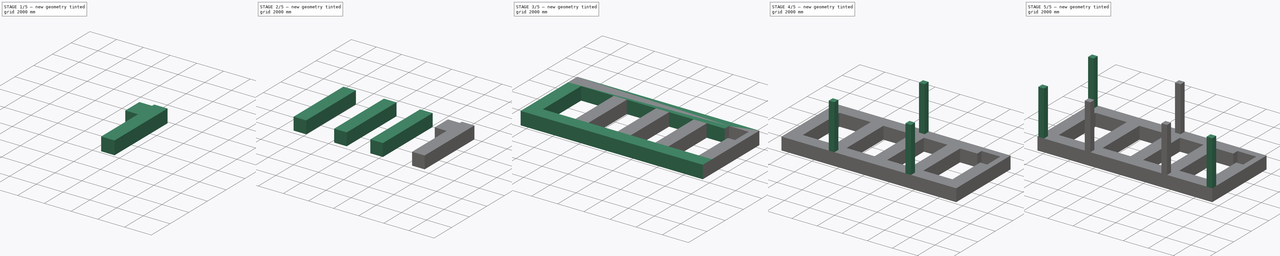
[diagram: build sequence overview — one tinted view per stage of 5, left to right]
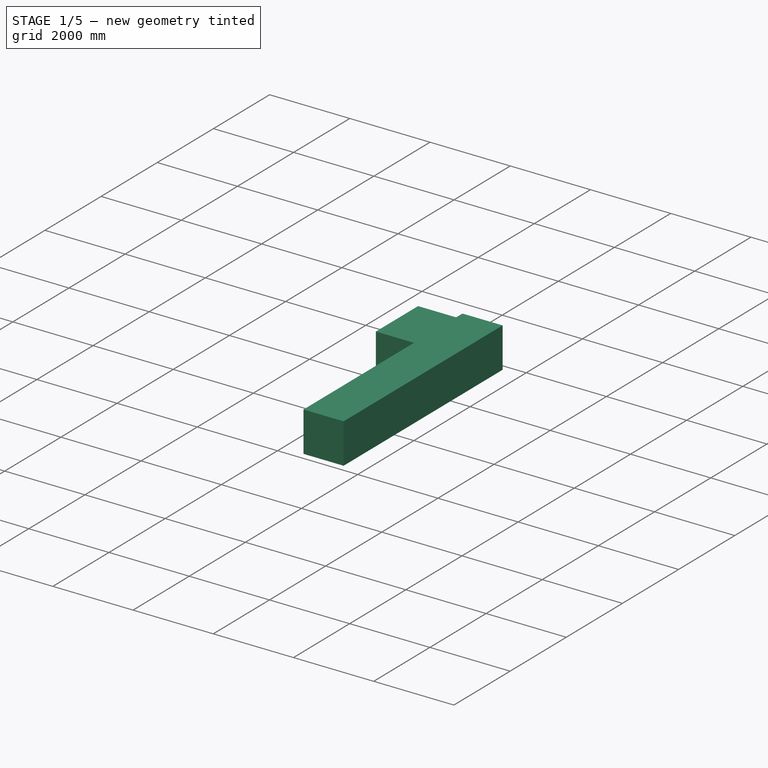
[diagram: stage 1 of 5 — iso view after this stage's code; geometry added in this stage tinted green]
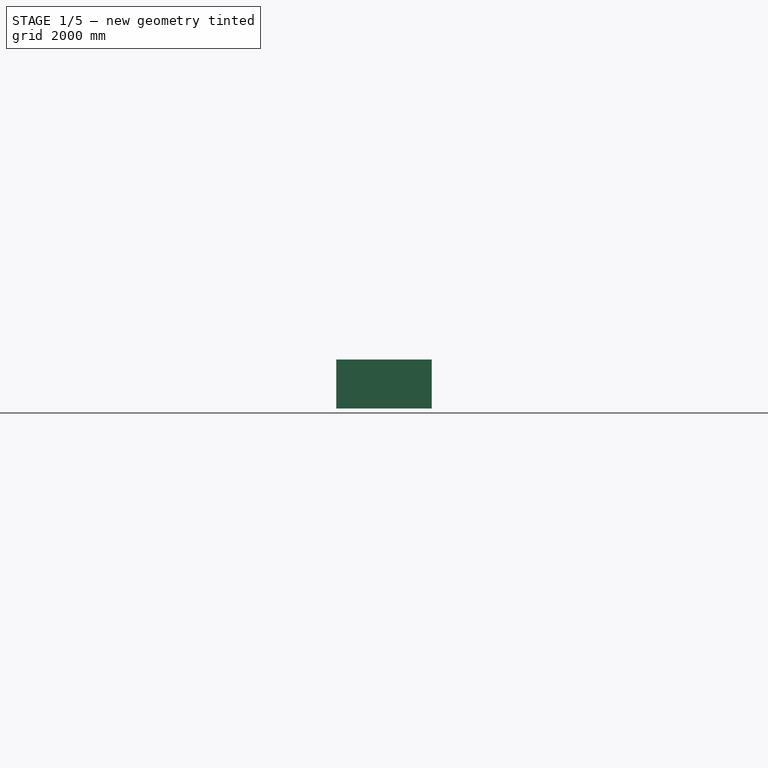
[diagram: stage 1 of 5 — front view after this stage's code; geometry added in this stage tinted green]
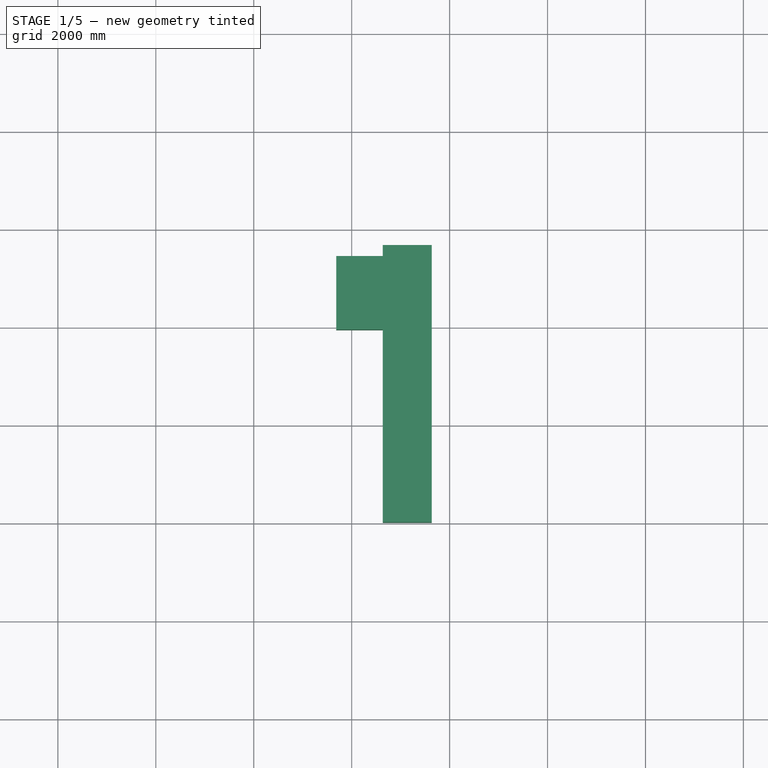
[diagram: stage 1 of 5 — top view after this stage's code; geometry added in this stage tinted green]
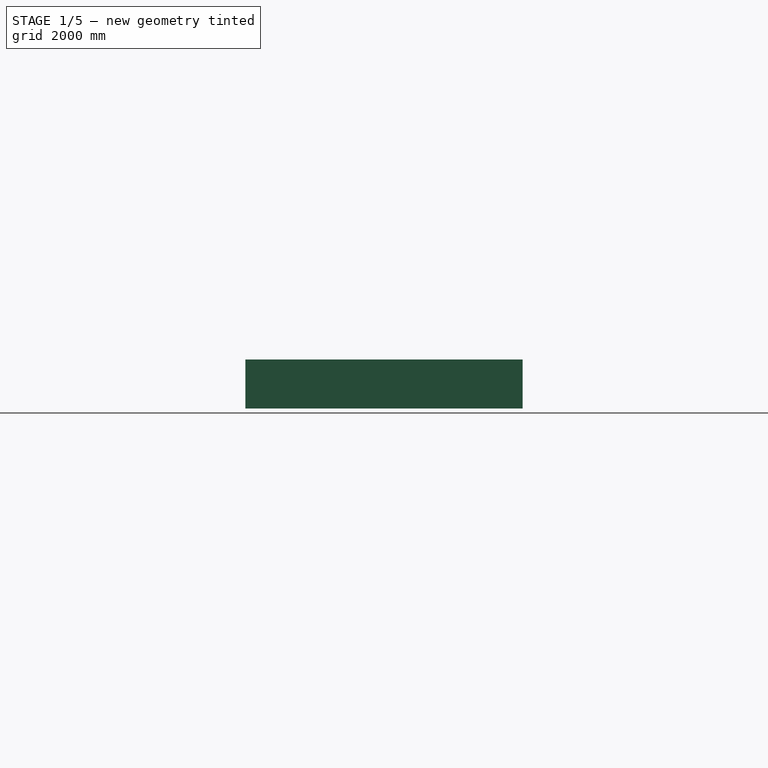
[diagram: stage 1 of 5 — right view after this stage's code; geometry added in this stage tinted green]
FCSTD DOCUMENT  (FreeCAD 0.19R24291 (Git))
Label: khalaji
License: All rights reserved
LicenseURL: http://en.wikipedia.org/wiki/All_rights_reserved
objects: Part::FeaturePython×30, Part::Part2DObjectPython×22, App::FeaturePython×15, App::DocumentObjectGroup×5, Sketcher::SketchObject×1
note: 141 computed .brp shape members not serialized (recipe doc carries the construction recipe); baked Part::Feature solids carry a one-line shape summary decoded from their .brp

FEATURE [Part::Part2DObjectPython] Line001  label="C15_Story1_CenterLine"  # Draft 2D object (typed FeaturePython)
  Area = 0
  ChamferSize = 0
  Closed = false
  End = (13410,5680,3600)
  FilletRadius = 0
  Length = 3600
  MakeFace = true
  Points = (2) [(13410,5680,0),(13410,5680,3600)]
  Start = (13410,5680,0)
  Subdivisions = 0
FEATURE [Part::FeaturePython] Structure001  label="C15_Story1"  # Arch/BIM 24 (typed FeaturePython)
  AttacherType = Attacher::AttachEngine3D
  AttachmentOffset = pos=(0,0,0) rot=(0,0,1;1.5708rad)
  Base = -> C4518Z
  FaceMaker = 0
  Height = 3600
  HorizontalArea = 202500
  IfcData = attributes={"GlobalId": {"name": "GlobalId", "type": "IfcGloballyUniqueId", "is_enum": false, "enum_values": []}, "Description": {"... (+438 chars omitted),+1 more (map truncated)
  IfcType = 24
  Length = 0
  MapMode = 7
  MoveBase = false
  MoveWithHost = false
  Nodes = (2) [(13410,5680,0),(13410,5680,3600)]
  NodesOffset = 0
  Normal = (0,0,0)
  PerimeterLength = 1800
  Placement = pos=(13410,5680,0) rot=(0,0,1;1.5708rad)
  PredefinedType = 0
  Support = -> [Line001]
  VerticalArea = 6.48e+06
  Width = 160
  combos_load = KH_11_Max=815.3684, 18066.92, -23855.31,KH_21_Max=799.7939, 18820.76, -25111.46,KH_22_Max=790.1386, 18723.22, -24869.01,+76 more (map truncated)
FEATURE [Part::Part2DObjectPython] Line011  # Draft 2D object (typed FeaturePython)
  Area = 0
  ChamferSize = 0
  Closed = false
  End = (13410,5680,0)
  FilletRadius = 0
  Length = 5660
  MakeFace = false
  Points = (2) [(13410,20,0),(13410,5680,0)]
  Start = (13410,20,0)
  Subdivisions = 0
FEATURE [Part::FeaturePython] BaseFoundation006  # Arch/BIM 77 (typed FeaturePython)
  Base = -> Line011
  HorizontalArea = 0
  IfcData = attributes={"GlobalId": {"name": "GlobalId", "type": "IfcGloballyUniqueId", "is_enum": false, "enum_values": []}, "Description": {"... (+511 chars omitted),+1 more (map truncated)
  IfcType = 77
  MoveBase = false
  MoveWithHost = false
  PerimeterLength = 0
  PredefinedType = 0
  VerticalArea = 0
  align = 2
  design_type = 0
  fc = 25000
  final_wire_first_point = (0,0,0)
  final_wire_last_point = (0,0,0)
  height = 1000
  ks = 2
  layer = 1
  left_width = 775
  right_width = 225
  width = 1000
FEATURE [Sketcher::SketchObject] sketch
  ExternalGeometry = -> [Structure001]
  FullyConstrained = true
  sketch-geometry (4):
    g0: LineSegment StartX=11685 StartY=3955 StartZ=0 EndX=11685 EndY=5455 EndZ=0
    g1: LineSegment StartX=11685 StartY=5455 StartZ=0 EndX=13185 EndY=5455 EndZ=0
    g2: LineSegment StartX=13185 StartY=5455 StartZ=0 EndX=13185 EndY=3955 EndZ=0
    g3: LineSegment StartX=13185 StartY=3955 StartZ=0 EndX=11685 EndY=3955 EndZ=0
  constraints (11):
    c: Coincident(g0,g1)
    c: Coincident(g1,g2)
    c: Coincident(g2,g3)
    c: Coincident(g3,g0)
    c: DistanceX(g1,g1) = 1500
    c: DistanceY(g2,g2) = 1500
    c: Horizontal(g1)
    c: Horizontal(g3)
    c: Vertical(g0)
    c: Vertical(g2)
    c: Coincident(g1,g-3)
FEATURE [Part::FeaturePython] Opening  # Arch/BIM 93 (typed FeaturePython)
  Base = -> sketch
  HorizontalArea = 0
  IfcData = attributes={"GlobalId": {"name": "GlobalId", "type": "IfcGloballyUniqueId", "is_enum": false, "enum_values": []}, "Description": {"... (+446 chars omitted),+1 more (map truncated)
  IfcType = 93
  MoveBase = false
  MoveWithHost = false
  PerimeterLength = 0
  PredefinedType = 0
  VerticalArea = 0
  height = 1000
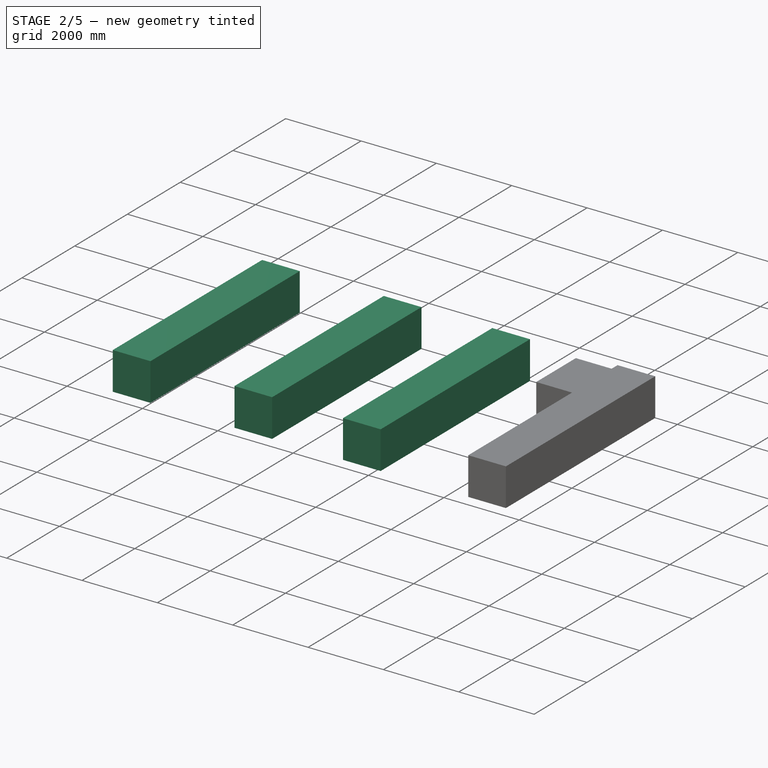
[diagram: stage 2 of 5 — iso view after this stage's code; geometry added in this stage tinted green]
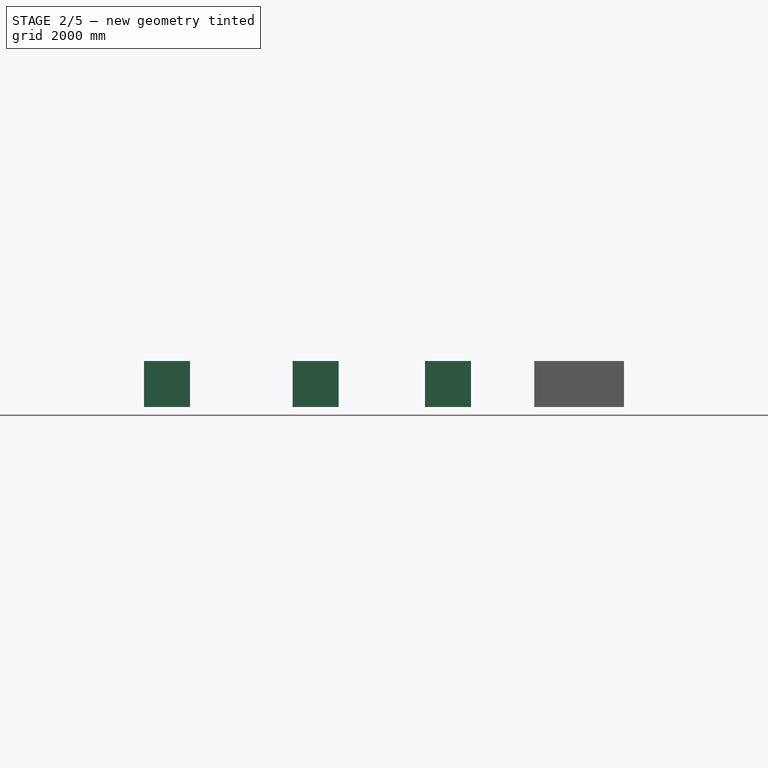
[diagram: stage 2 of 5 — front view after this stage's code; geometry added in this stage tinted green]
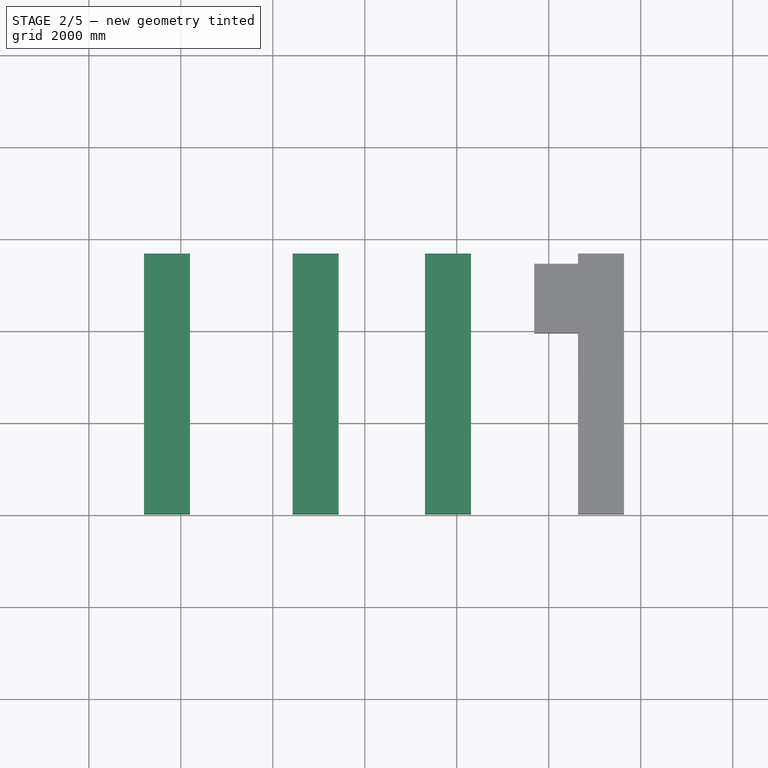
[diagram: stage 2 of 5 — top view after this stage's code; geometry added in this stage tinted green]
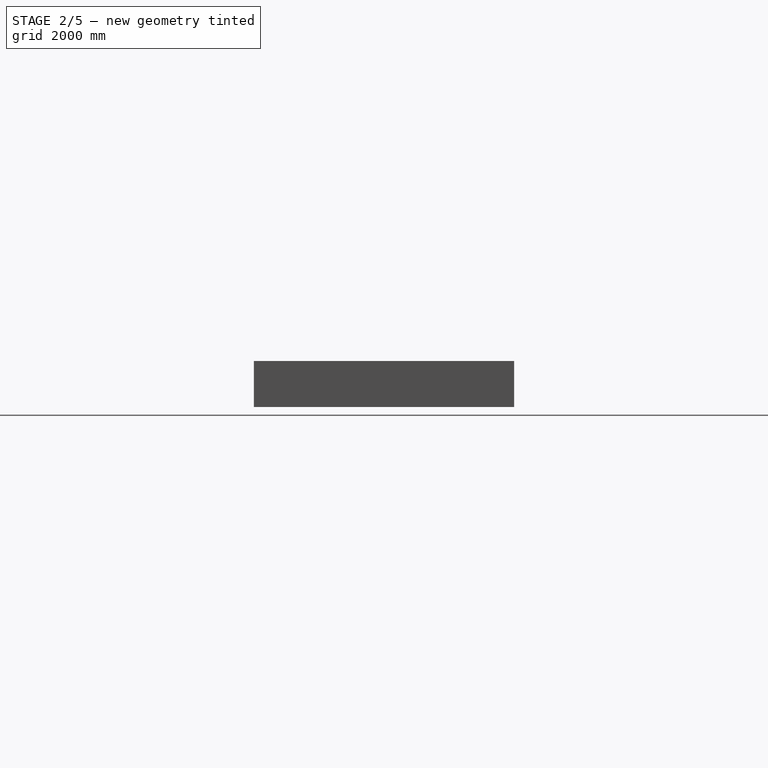
[diagram: stage 2 of 5 — right view after this stage's code; geometry added in this stage tinted green]
FEATURE [Part::Part2DObjectPython] Line008  # Draft 2D object (typed FeaturePython)
  Area = 0
  ChamferSize = 0
  Closed = false
  End = (3700,5680,0)
  FilletRadius = 0
  Length = 5660
  MakeFace = false
  Points = (2) [(3700,20,0),(3700,5680,0)]
  Start = (3700,20,0)
  Subdivisions = 0
FEATURE [Part::FeaturePython] BaseFoundation003  # Arch/BIM 77 (typed FeaturePython)
  Base = -> Line008
  HorizontalArea = 0
  IfcData = attributes={"GlobalId": {"name": "GlobalId", "type": "IfcGloballyUniqueId", "is_enum": false, "enum_values": []}, "Description": {"... (+511 chars omitted),+1 more (map truncated)
  IfcType = 77
  MoveBase = false
  MoveWithHost = false
  PerimeterLength = 0
  PredefinedType = 0
  VerticalArea = 0
  align = 0
  design_type = 0
  fc = 25000
  final_wire_first_point = (0,0,0)
  final_wire_last_point = (0,0,0)
  height = 1000
  ks = 2
  layer = 1
  left_width = 500
  right_width = 500
  width = 1000
FEATURE [Part::Part2DObjectPython] Line009  # Draft 2D object (typed FeaturePython)
  Area = 0
  ChamferSize = 0
  Closed = false
  End = (6930,5680,0)
  FilletRadius = 0
  Length = 5660
  MakeFace = false
  Points = (2) [(6930,20,0),(6930,5680,0)]
  Start = (6930,20,0)
  Subdivisions = 0
FEATURE [Part::FeaturePython] BaseFoundation004  # Arch/BIM 77 (typed FeaturePython)
  Base = -> Line009
  HorizontalArea = 0
  IfcData = attributes={"GlobalId": {"name": "GlobalId", "type": "IfcGloballyUniqueId", "is_enum": false, "enum_values": []}, "Description": {"... (+511 chars omitted),+1 more (map truncated)
  IfcType = 77
  MoveBase = false
  MoveWithHost = false
  PerimeterLength = 0
  PredefinedType = 0
  VerticalArea = 0
  align = 0
  design_type = 0
  fc = 25000
  final_wire_first_point = (0,0,0)
  final_wire_last_point = (0,0,0)
  height = 1000
  ks = 2
  layer = 1
  left_width = 500
  right_width = 500
  width = 1000
FEATURE [Part::Part2DObjectPython] Line010  # Draft 2D object (typed FeaturePython)
  Area = 0
  ChamferSize = 0
  Closed = false
  End = (9810,5680,0)
  FilletRadius = 0
  Length = 5660
  MakeFace = false
  Points = (2) [(9810,20,0),(9810,5680,0)]
  Start = (9810,20,0)
  Subdivisions = 0
FEATURE [Part::FeaturePython] BaseFoundation005  # Arch/BIM 77 (typed FeaturePython)
  Base = -> Line010
  HorizontalArea = 0
  IfcData = attributes={"GlobalId": {"name": "GlobalId", "type": "IfcGloballyUniqueId", "is_enum": false, "enum_values": []}, "Description": {"... (+511 chars omitted),+1 more (map truncated)
  IfcType = 77
  MoveBase = false
  MoveWithHost = false
  PerimeterLength = 0
  PredefinedType = 0
  VerticalArea = 0
  align = 0
  design_type = 0
  fc = 25000
  final_wire_first_point = (0,0,0)
  final_wire_last_point = (0,0,0)
  height = 1000
  ks = 2
  layer = 1
  left_width = 500
  right_width = 500
  width = 1000
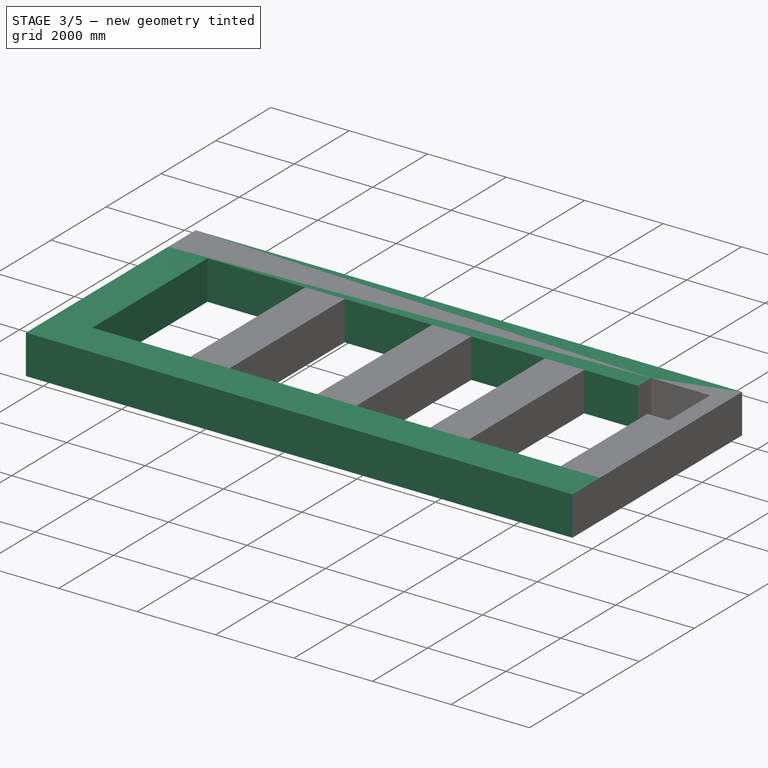
[diagram: stage 3 of 5 — iso view after this stage's code; geometry added in this stage tinted green]
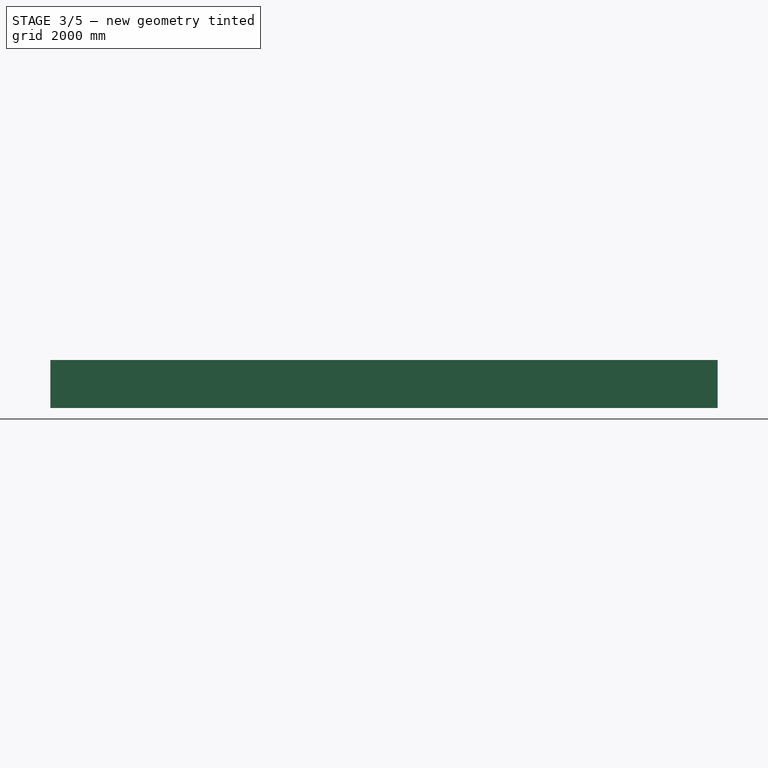
[diagram: stage 3 of 5 — front view after this stage's code; geometry added in this stage tinted green]
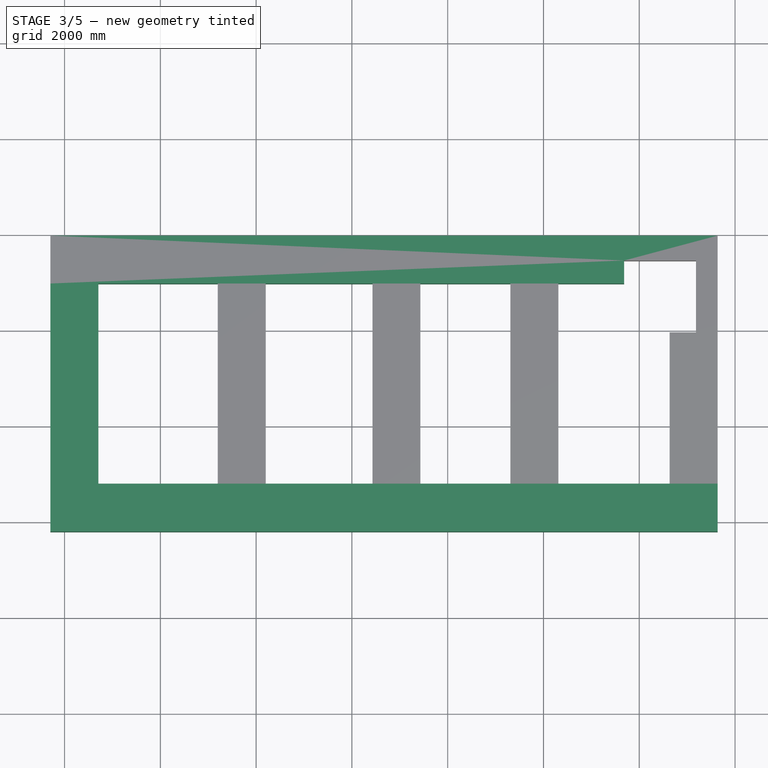
[diagram: stage 3 of 5 — top view after this stage's code; geometry added in this stage tinted green]
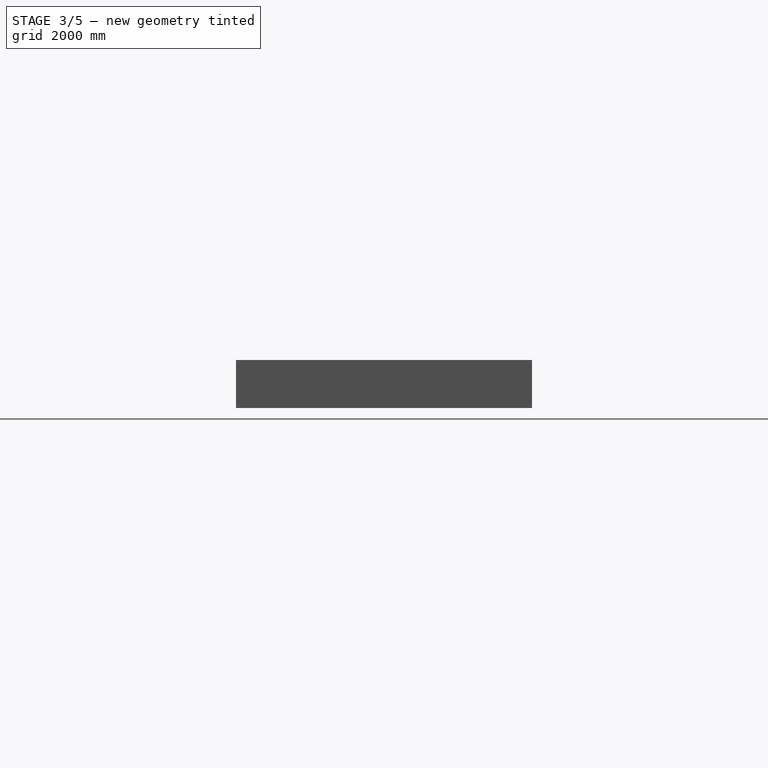
[diagram: stage 3 of 5 — right view after this stage's code; geometry added in this stage tinted green]
FEATURE [App::DocumentObjectGroup] Columns
  Group = -> [Structure,Structure001,Structure002,Structure003,Structure004,Structure005,Structure006]
FEATURE [App::FeaturePython] Safe  # WARN: FeaturePython — macro-defined, semantics opaque (R4)
  input = <path>
  output = <path>
FEATURE [Part::Part2DObjectPython] Wire  # Draft 2D object (typed FeaturePython)
  Area = 0
  ChamferSize = 0
  Closed = false
  End = (13410,20,0)
  FilletRadius = 0
  Length = 13410
  MakeFace = false
  Points = (4) [(0,20,0),(3700,20,0),(9810,20,0),(13410,20,0)]
  Start = (0,20,0)
  Subdivisions = 0
FEATURE [Part::FeaturePython] BaseFoundation  # Arch/BIM 77 (typed FeaturePython)
  Base = -> Wire
  HorizontalArea = 0
  IfcData = attributes={"GlobalId": {"name": "GlobalId", "type": "IfcGloballyUniqueId", "is_enum": false, "enum_values": []}, "Description": {"... (+511 chars omitted),+1 more (map truncated)
  IfcType = 77
  MoveBase = false
  MoveWithHost = false
  PerimeterLength = 0
  PredefinedType = 0
  VerticalArea = 0
  align = 2
  design_type = 0
  fc = 25000
  final_wire_first_point = (0,0,0)
  final_wire_last_point = (0,0,0)
  height = 1000
  ks = 2
  layer = 0
  left_width = 775
  right_width = 225
  width = 1000
FEATURE [Part::Part2DObjectPython] Line007  # Draft 2D object (typed FeaturePython)
  Area = 0
  ChamferSize = 0
  Closed = false
  End = (0,5680,0)
  FilletRadius = 0
  Length = 5660
  MakeFace = false
  Points = (2) [(0,20,0),(0,5680,0)]
  Start = (0,20,0)
  Subdivisions = 0
FEATURE [Part::FeaturePython] BaseFoundation001  # Arch/BIM 77 (typed FeaturePython)
  Base = -> Line007
  HorizontalArea = 0
  IfcData = attributes={"GlobalId": {"name": "GlobalId", "type": "IfcGloballyUniqueId", "is_enum": false, "enum_values": []}, "Description": {"... (+511 chars omitted),+1 more (map truncated)
  IfcType = 77
  MoveBase = false
  MoveWithHost = false
  PerimeterLength = 0
  PredefinedType = 0
  VerticalArea = 0
  align = 1
  design_type = 0
  fc = 25000
  final_wire_first_point = (0,0,0)
  final_wire_last_point = (0,0,0)
  height = 1000
  ks = 2
  layer = 1
  left_width = 295
  right_width = 705
  width = 1000
FEATURE [Part::Part2DObjectPython] Wire001  # Draft 2D object (typed FeaturePython)
  Area = 0
  ChamferSize = 0
  Closed = false
  End = (13410,5680,0)
  FilletRadius = 0
  Length = 13410
  MakeFace = false
  Points = (3) [(0,5680,0),(6930,5680,0),(13410,5680,0)]
  Start = (0,5680,0)
  Subdivisions = 0
FEATURE [Part::FeaturePython] BaseFoundation002  # Arch/BIM 77 (typed FeaturePython)
  Base = -> Wire001
  HorizontalArea = 0
  IfcData = attributes={"GlobalId": {"name": "GlobalId", "type": "IfcGloballyUniqueId", "is_enum": false, "enum_values": []}, "Description": {"... (+511 chars omitted),+1 more (map truncated)
  IfcType = 77
  MoveBase = false
  MoveWithHost = false
  PerimeterLength = 0
  PredefinedType = 0
  VerticalArea = 0
  align = 1
  design_type = 0
  fc = 25000
  final_wire_first_point = (0,0,0)
  final_wire_last_point = (0,0,0)
  height = 1000
  ks = 2
  layer = 0
  left_width = 295
  right_width = 705
  width = 1000
FEATURE [Part::FeaturePython] Foundation  # Arch/BIM 77 (typed FeaturePython)
  HorizontalArea = 0
  IfcData = attributes={"GlobalId": {"name": "GlobalId", "type": "IfcGloballyUniqueId", "is_enum": false, "enum_values": []}, "Description": {"... (+511 chars omitted),+1 more (map truncated)
  IfcType = 77
  MoveBase = false
  MoveWithHost = false
  PerimeterLength = 0
  PredefinedType = 0
  VerticalArea = 0
  base_foundations = -> [BaseFoundation,BaseFoundation001,BaseFoundation002,BaseFoundation003,BaseFoundation004,BaseFoundation005,BaseFoundation006]
  continuous_layer = 0
  cover = 75
  d = 925
  fc = 30000
  foundation_type = 0
  height = 1000
  ks = 2
  level = 0
  openings = -> [Opening]
  redraw = false
  split = true
FEATURE [App::FeaturePython] Text  # WARN: FeaturePython — macro-defined, semantics opaque (R4)
  Placement = pos=(-295,5483.75,3600) rot=(0,0,1;0rad)
  Text = Corner 4 | 0.91
FEATURE [App::FeaturePython] Text001  # WARN: FeaturePython — macro-defined, semantics opaque (R4)
  Placement = pos=(13635,5483.75,3600) rot=(0,0,1;0rad)
  Text = Corner 3 | 2.02
FEATURE [App::FeaturePython] Text002  # WARN: FeaturePython — macro-defined, semantics opaque (R4)
  Placement = pos=(13635,251.25,3600) rot=(0,0,1;0rad)
  Text = Corner 2 | 1.18
FEATURE [App::FeaturePython] Text003  # WARN: FeaturePython — macro-defined, semantics opaque (R4)
  Placement = pos=(-295,251.25,3600) rot=(0,0,1;0rad)
  Text = Corner 1 | 0.88
FEATURE [App::FeaturePython] Text004  # WARN: FeaturePython — macro-defined, semantics opaque (R4)
  Placement = pos=(6930,5975,3600) rot=(0,0,1;0rad)
  Text = Edge 3 | 0.65
FEATURE [App::FeaturePython] Text005  # WARN: FeaturePython — macro-defined, semantics opaque (R4)
  Placement = pos=(3700,-205,3600) rot=(0,0,1;0rad)
  Text = Edge 1 | 0.56
FEATURE [App::FeaturePython] Text006  # WARN: FeaturePython — macro-defined, semantics opaque (R4)
  Placement = pos=(9810,-205,3600) rot=(0,0,1;0rad)
  Text = Edge 1 | 0.37
FEATURE [Part::Part2DObjectPython] Line026  # Draft 2D object (typed FeaturePython)
  Area = 0
  ChamferSize = 0
  Closed = false
  End = (13635,20,0)
  FilletRadius = 0
  Length = 13930
  MakeFace = false
  Points = (2) [(-295,20,0),(13635,20,0)]
  Start = (-295,20,0)
  Subdivisions = 0
FEATURE [Part::FeaturePython] Strip  label="CSA1"  # Arch/BIM 0 (typed FeaturePython)
  Base = -> Line026
  HorizontalArea = 0
  IfcData = attributes={"GlobalId": {"name": "GlobalId", "type": "IfcGloballyUniqueId", "is_enum": false, "enum_values": []}, "Description": {"... (+538 chars omitted),+1 more (map truncated)
  IfcType = 0
  MoveBase = false
  MoveWithHost = false
  PerimeterLength = 0
  PredefinedType = 0
  VerticalArea = 0
  align = 2
  design_type = 0
  layer = 0
  left_width = 775
  right_width = 225
  width = 1000
FEATURE [Part::Part2DObjectPython] Line027  # Draft 2D object (typed FeaturePython)
  Area = 0
  ChamferSize = 0
  Closed = false
  End = (0,5975,0)
  FilletRadius = 0
  Length = 6180
  MakeFace = false
  Points = (2) [(0,-205,0),(0,5975,0)]
  Start = (0,-205,0)
  Subdivisions = 0
FEATURE [Part::FeaturePython] Strip001  label="CSB1"  # Arch/BIM 0 (typed FeaturePython)
  Base = -> Line027
  HorizontalArea = 0
  IfcData = attributes={"GlobalId": {"name": "GlobalId", "type": "IfcGloballyUniqueId", "is_enum": false, "enum_values": []}, "Description": {"... (+538 chars omitted),+1 more (map truncated)
  IfcType = 0
  MoveBase = false
  MoveWithHost = false
  PerimeterLength = 0
  PredefinedType = 0
  VerticalArea = 0
  align = 1
  design_type = 0
  layer = 1
  left_width = 295
  right_width = 705
  width = 1000
FEATURE [Part::Part2DObjectPython] Line028  # Draft 2D object (typed FeaturePython)
  Area = 0
  ChamferSize = 0
  Closed = false
  End = (13635,5680,0)
  FilletRadius = 0
  Length = 13930
  MakeFace = false
  Points = (2) [(-295,5680,0),(13635,5680,0)]
  Start = (-295,5680,0)
  Subdivisions = 0
FEATURE [Part::FeaturePython] Strip002  label="CSA2"  # Arch/BIM 0 (typed FeaturePython)
  Base = -> Line028
  HorizontalArea = 0
  IfcData = attributes={"GlobalId": {"name": "GlobalId", "type": "IfcGloballyUniqueId", "is_enum": false, "enum_values": []}, "Description": {"... (+538 chars omitted),+1 more (map truncated)
  IfcType = 0
  MoveBase = false
  MoveWithHost = false
  PerimeterLength = 0
  PredefinedType = 0
  VerticalArea = 0
  align = 1
  design_type = 0
  layer = 0
  left_width = 295
  right_width = 705
  width = 1000
FEATURE [App::DocumentObjectGroup] A_strips
  Group = -> [Strip,Strip002]
FEATURE [Part::Part2DObjectPython] Line029  # Draft 2D object (typed FeaturePython)
  Area = 0
  ChamferSize = 0
  Closed = false
  End = (3700,5975,0)
  FilletRadius = 0
  Length = 6180
  MakeFace = false
  Points = (2) [(3700,-205,0),(3700,5975,0)]
  Start = (3700,-205,0)
  Subdivisions = 0
FEATURE [Part::FeaturePython] Strip003  label="CSB2"  # Arch/BIM 0 (typed FeaturePython)
  Base = -> Line029
  HorizontalArea = 0
  IfcData = attributes={"GlobalId": {"name": "GlobalId", "type": "IfcGloballyUniqueId", "is_enum": false, "enum_values": []}, "Description": {"... (+538 chars omitted),+1 more (map truncated)
  IfcType = 0
  MoveBase = false
  MoveWithHost = false
  PerimeterLength = 0
  PredefinedType = 0
  VerticalArea = 0
  align = 0
  design_type = 0
  layer = 1
  left_width = 500
  right_width = 500
  width = 1000
FEATURE [Part::Part2DObjectPython] Line030  # Draft 2D object (typed FeaturePython)
  Area = 0
  ChamferSize = 0
  Closed = false
  End = (6930,5975,0)
  FilletRadius = 0
  Length = 6180
  MakeFace = false
  Points = (2) [(6930,-205,0),(6930,5975,0)]
  Start = (6930,-205,0)
  Subdivisions = 0
FEATURE [Part::FeaturePython] Strip004  label="CSB3"  # Arch/BIM 0 (typed FeaturePython)
  Base = -> Line030
  HorizontalArea = 0
  IfcData = attributes={"GlobalId": {"name": "GlobalId", "type": "IfcGloballyUniqueId", "is_enum": false, "enum_values": []}, "Description": {"... (+538 chars omitted),+1 more (map truncated)
  IfcType = 0
  MoveBase = false
  MoveWithHost = false
  PerimeterLength = 0
  PredefinedType = 0
  VerticalArea = 0
  align = 0
  design_type = 0
  layer = 1
  left_width = 500
  right_width = 500
  width = 1000
FEATURE [Part::Part2DObjectPython] Line031  # Draft 2D object (typed FeaturePython)
  Area = 0
  ChamferSize = 0
  Closed = false
  End = (9810,5975,0)
  FilletRadius = 0
  Length = 6180
  MakeFace = false
  Points = (2) [(9810,-205,0),(9810,5975,0)]
  Start = (9810,-205,0)
  Subdivisions = 0
FEATURE [Part::FeaturePython] Strip005  label="CSB4"  # Arch/BIM 0 (typed FeaturePython)
  Base = -> Line031
  HorizontalArea = 0
  IfcData = attributes={"GlobalId": {"name": "GlobalId", "type": "IfcGloballyUniqueId", "is_enum": false, "enum_values": []}, "Description": {"... (+538 chars omitted),+1 more (map truncated)
  IfcType = 0
  MoveBase = false
  MoveWithHost = false
  PerimeterLength = 0
  PredefinedType = 0
  VerticalArea = 0
  align = 0
  design_type = 0
  layer = 1
  left_width = 500
  right_width = 500
  width = 1000
FEATURE [Part::Part2DObjectPython] Line032  # Draft 2D object (typed FeaturePython)
  Area = 0
  ChamferSize = 0
  Closed = false
  End = (13410,5975,0)
  FilletRadius = 0
  Length = 6180
  MakeFace = false
  Points = (2) [(13410,-205,0),(13410,5975,0)]
  Start = (13410,-205,0)
  Subdivisions = 0
FEATURE [Part::FeaturePython] Strip006  label="CSB5"  # Arch/BIM 0 (typed FeaturePython)
  Base = -> Line032
  HorizontalArea = 0
  IfcData = attributes={"GlobalId": {"name": "GlobalId", "type": "IfcGloballyUniqueId", "is_enum": false, "enum_values": []}, "Description": {"... (+538 chars omitted),+1 more (map truncated)
  IfcType = 0
  MoveBase = false
  MoveWithHost = false
  PerimeterLength = 0
  PredefinedType = 0
  VerticalArea = 0
  align = 2
  design_type = 0
  layer = 1
  left_width = 775
  right_width = 225
  width = 1000
FEATURE [App::DocumentObjectGroup] B_strips
  Group = -> [Strip001,Strip003,Strip004,Strip005,Strip006]
FEATURE [App::FeaturePython] Text007  # WARN: FeaturePython — macro-defined, semantics opaque (R4)
  Placement = pos=(-295,5483.75,3600) rot=(0,0,1;0rad)
  Text = Corner 4 | 0.91
FEATURE [Part::FeaturePython] Punch  # WARN: FeaturePython — macro-defined, semantics opaque (R4)
  Area = 1.81762e+06
  I22 = 2.47567e+11
  I23 = 0
  I33 = 2.47567e+11
  Location = 3
  Ratio = 0.91
  Vc = 2.48889e+06
  Vu = 0
  alpha_s = 20
  angle = 0
  b0 = 1965
  bx = 450
  by = 450
  center_of_column = (0,5680,0)
  center_of_load = (0,5680,0)
  center_of_punch = (441.875,5238.12,-462.5)
  column = -> Structure
  combos_ratio = KH_11_Max=0.49,KH_21_Max=0.47,KH_22_Max=0.47,KH_31_Max=0.45,KH_32_Max=0.43,KH_41_Max=0.44,KH_42_Max=0.43,KH_510_Max=0.83,KH_511_Max=0.85,+71 more (map truncated)
  d = 925
  fc = 30000
  foundation = -> Foundation
  gamma_vx = 0.4
  gamma_vy = 0.4
  id = C10_Story1
  one_way_shear_capacity = 1.24444e+06
  text = -> Text007
  user_location = false
  vc = 1.36931
FEATURE [App::FeaturePython] Text008  # WARN: FeaturePython — macro-defined, semantics opaque (R4)
  Placement = pos=(13635,5483.75,3600) rot=(0,0,1;0rad)
  Text = Corner 3 | 2.02
FEATURE [Part::FeaturePython] Punch001  # WARN: FeaturePython — macro-defined, semantics opaque (R4)
  Area = 897250
  I22 = 1.61618e+11
  I23 = 0
  I33 = 1.42174e+11
  Location = 2
  Ratio = 2.02
  Vc = 1.22861e+06
  Vu = 0
  alpha_s = 20
  angle = 0
  b0 = 970
  bx = 450
  by = 450
  center_of_column = (13410,5680,0)
  center_of_load = (13410,5680,0)
  center_of_punch = (13041.4,5379.82,-462.5)
  column = -> Structure001
  combos_ratio = KH_11_Max=1.01,KH_21_Max=0.99,KH_22_Max=0.97,KH_31_Max=0.96,KH_32_Max=0.92,KH_41_Max=0.93,KH_42_Max=0.92,KH_510_Max=2.02,KH_511_Max=1.98,+71 more (map truncated)
  d = 925
  fc = 30000
  foundation = -> Foundation
  gamma_vx = 0.4
  gamma_vy = 0.4
  id = C15_Story1
  one_way_shear_capacity = 614305
  text = -> Text008
  user_location = false
  vc = 1.36931
FEATURE [App::FeaturePython] Text009  # WARN: FeaturePython — macro-defined, semantics opaque (R4)
  Placement = pos=(13635,251.25,3600) rot=(0,0,1;0rad)
  Text = Corner 2 | 1.18
FEATURE [Part::FeaturePython] Punch002  # WARN: FeaturePython — macro-defined, semantics opaque (R4)
  Area = 1.68812e+06
  I22 = 2.06603e+11
  I23 = 0
  I33 = 2.06603e+11
  Location = 1
  Ratio = 1.18
  Vc = 2.31156e+06
  Vu = 0
  alpha_s = 20
  angle = 0
  b0 = 1825
  bx = 450
  by = 450
  center_of_column = (13410,20,0)
  center_of_load = (13410,20,0)
  center_of_punch = (12950.6,479.375,-462.5)
  column = -> Structure002
  combos_ratio = KH_11_Max=0.50,KH_21_Max=0.50,KH_22_Max=0.50,KH_31_Max=0.48,KH_32_Max=0.46,KH_41_Max=0.47,KH_42_Max=0.46,KH_510_Max=0.15,KH_511_Max=0.06,+71 more (map truncated)
  d = 925
  fc = 30000
  foundation = -> Foundation
  gamma_vx = 0.4
  gamma_vy = 0.4
  id = C3_Story1
  one_way_shear_capacity = 1.15578e+06
  text = -> Text009
  user_location = false
  vc = 1.36931
FEATURE [App::FeaturePython] Text010  # WARN: FeaturePython — macro-defined, semantics opaque (R4)
  Placement = pos=(-295,251.25,3600) rot=(0,0,1;0rad)
  Text = Corner 1 | 0.88
FEATURE [Part::FeaturePython] Punch003  # WARN: FeaturePython — macro-defined, semantics opaque (R4)
  Area = 1.75287e+06
  I22 = 2.09848e+11
  I23 = 0
  I33 = 2.43517e+11
  Location = 0
  Ratio = 0.88
  Vc = 2.40022e+06
  Vu = 0
  alpha_s = 20
  angle = 0
  b0 = 1895
  bx = 450
  by = 450
  center_of_column = (0,20,0)
  center_of_load = (0,20,0)
  center_of_punch = (432.802,487.802,-462.5)
  column = -> Structure003
  combos_ratio = KH_11_Max=0.35,KH_21_Max=0.34,KH_22_Max=0.33,KH_31_Max=0.32,KH_32_Max=0.31,KH_41_Max=0.31,KH_42_Max=0.31,KH_510_Max=0.02,KH_511_Max=0.11,+71 more (map truncated)
  d = 925
  fc = 30000
  foundation = -> Foundation
  gamma_vx = 0.4
  gamma_vy = 0.4
  id = C13_Story1
  one_way_shear_capacity = 1.20011e+06
  text = -> Text010
  user_location = false
  vc = 1.36931
FEATURE [App::FeaturePython] Text011  # WARN: FeaturePython — macro-defined, semantics opaque (R4)
  Placement = pos=(6930,5975,3600) rot=(0,0,1;0rad)
  Text = Edge 3 | 0.65
FEATURE [Part::FeaturePython] Punch004  # WARN: FeaturePython — macro-defined, semantics opaque (R4)
  Area = 3089500
  I22 = 4.56393e+11
  I23 = 2.52718e+11
  I33 = 1.15019e+12
  Location = 6
  Ratio = 0.65
  Vc = 4.23047e+06
  Vu = 0
  alpha_s = 30
  angle = 0
  b0 = 3340
  bx = 450
  by = 450
  center_of_column = (6930,5680,0)
  center_of_load = (6930,5680,0)
  center_of_punch = (6930,5281.51,-462.5)
  column = -> Structure004
  combos_ratio = KH_11_Max=0.53,KH_21_Max=0.55,KH_22_Max=0.54,KH_31_Max=0.51,KH_32_Max=0.50,KH_41_Max=0.50,KH_42_Max=0.50,KH_510_Max=0.61,KH_511_Max=0.65,+71 more (map truncated)
  d = 925
  fc = 30000
  foundation = -> Foundation
  gamma_vx = 0.4
  gamma_vy = 0.4
  id = C12_Story1
  one_way_shear_capacity = 2.11524e+06
  text = -> Text011
  user_location = false
  vc = 1.36931
FEATURE [App::FeaturePython] Text012  # WARN: FeaturePython — macro-defined, semantics opaque (R4)
  Placement = pos=(3700,-205,3600) rot=(0,0,1;0rad)
  Text = Edge 1 | 0.56
FEATURE [Part::FeaturePython] Punch005  # WARN: FeaturePython — macro-defined, semantics opaque (R4)
  Area = 2960000
  I22 = 3.88498e+11
  I23 = 2.27527e+11
  I33 = 1.08898e+12
  Location = 4
  Ratio = 0.56
  Vc = 4.05315e+06
  Vu = 0
  alpha_s = 30
  angle = 0
  b0 = 3200
  bx = 450
  by = 450
  center_of_column = (3700,20,0)
  center_of_load = (3700,20,0)
  center_of_punch = (3700,447.295,-462.5)
  column = -> Structure005
  combos_ratio = KH_11_Max=0.37,KH_21_Max=0.38,KH_22_Max=0.38,KH_31_Max=0.35,KH_32_Max=0.34,KH_41_Max=0.34,KH_42_Max=0.34,KH_510_Max=0.27,KH_511_Max=0.18,+71 more (map truncated)
  d = 925
  fc = 30000
  foundation = -> Foundation
  gamma_vx = 0.4
  gamma_vy = 0.4
  id = C14_Story1
  one_way_shear_capacity = 2.02657e+06
  text = -> Text012
  user_location = false
  vc = 1.36931
FEATURE [App::FeaturePython] Text013  # WARN: FeaturePython — macro-defined, semantics opaque (R4)
  Placement = pos=(9810,-205,3600) rot=(0,0,1;0rad)
  Text = Edge 1 | 0.37
FEATURE [Part::FeaturePython] Punch006  # WARN: FeaturePython — macro-defined, semantics opaque (R4)
  Area = 2960000
  I22 = 3.88498e+11
  I23 = 2.27527e+11
  I33 = 1.08898e+12
  Location = 4
  Ratio = 0.37
  Vc = 4.05315e+06
  Vu = 0
  alpha_s = 30
  angle = 0
  b0 = 3200
  bx = 450
  by = 450
  center_of_column = (9810,20,0)
  center_of_load = (9810,20,0)
  center_of_punch = (9810,447.295,-462.5)
  column = -> Structure006
  combos_ratio = KH_11_Max=0.27,KH_21_Max=0.27,KH_22_Max=0.27,KH_31_Max=0.26,KH_32_Max=0.25,KH_41_Max=0.25,KH_42_Max=0.25,KH_510_Max=0.12,KH_511_Max=0.17,+71 more (map truncated)
  d = 925
  fc = 30000
  foundation = -> Foundation
  gamma_vx = 0.4
  gamma_vy = 0.4
  id = C7_Story1
  one_way_shear_capacity = 2.02657e+06
  text = -> Text013
  user_location = false
  vc = 1.36931
FEATURE [App::DocumentObjectGroup] Punches
  Group = -> [Punch,Punch001,Punch002,Punch003,Punch004,Punch005,Punch006]
note: 2 file-system paths scrubbed to <path> (originals preserved in the JSON sidecar)
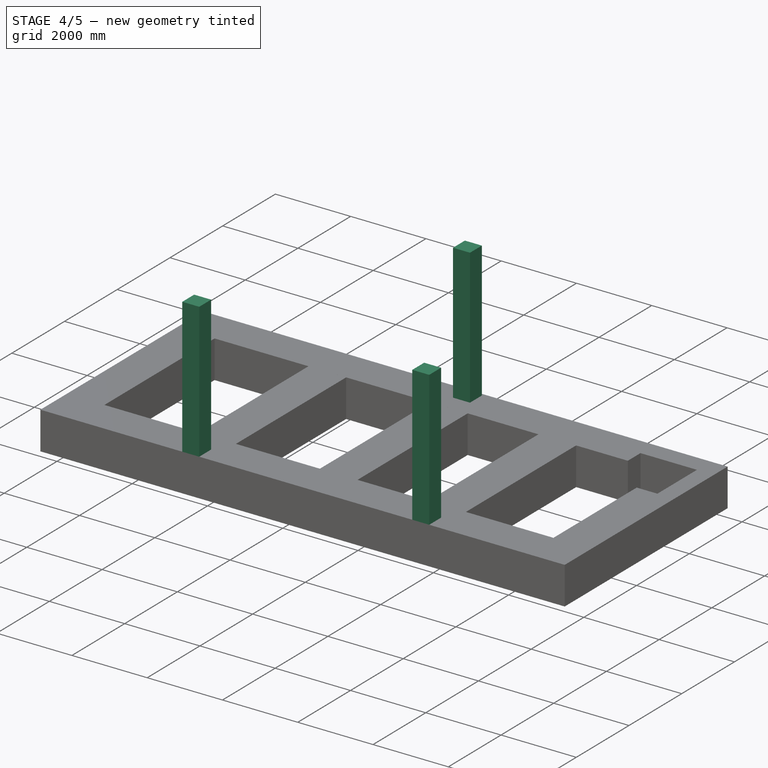
[diagram: stage 4 of 5 — iso view after this stage's code; geometry added in this stage tinted green]
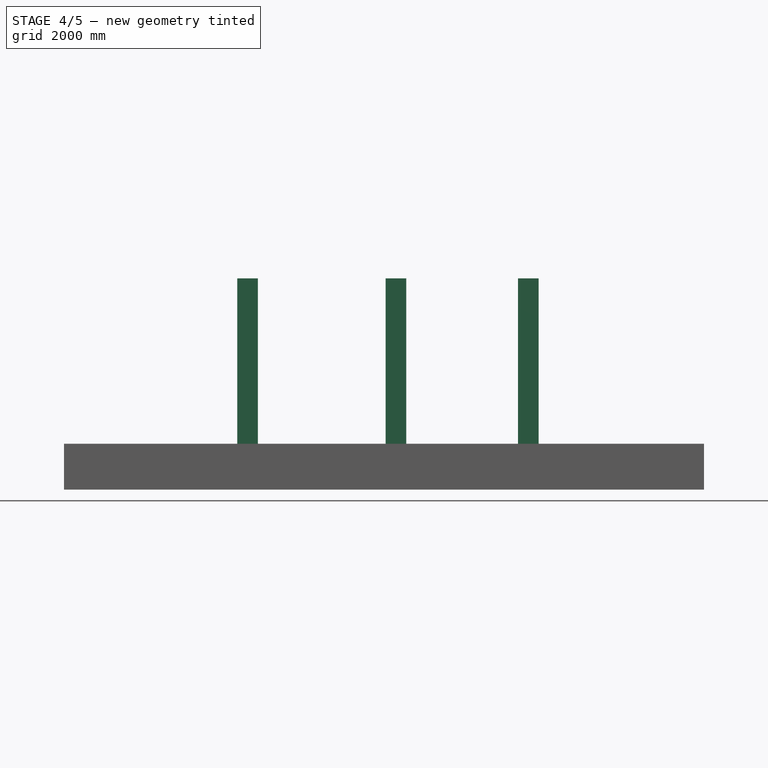
[diagram: stage 4 of 5 — front view after this stage's code; geometry added in this stage tinted green]
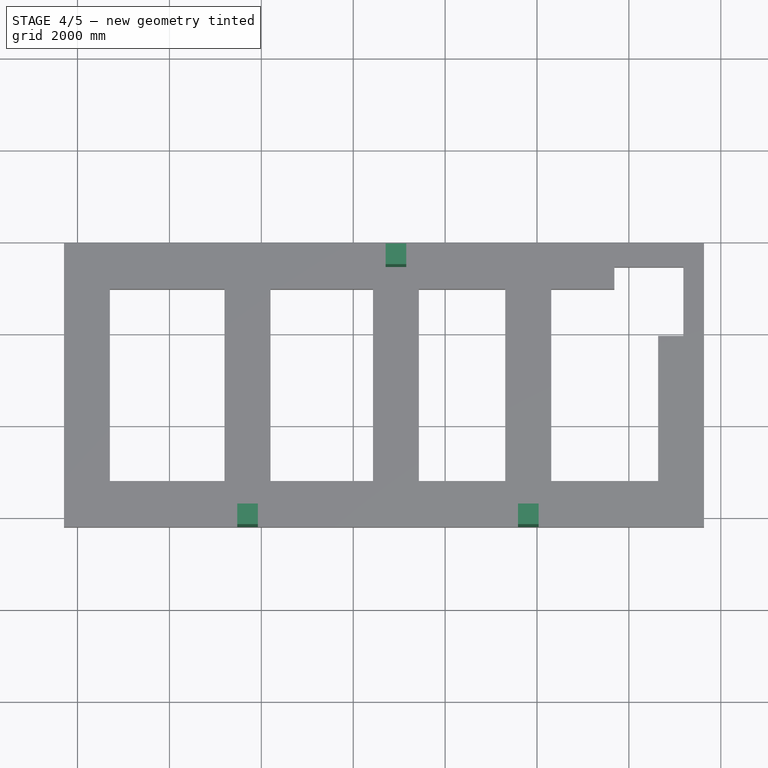
[diagram: stage 4 of 5 — top view after this stage's code; geometry added in this stage tinted green]
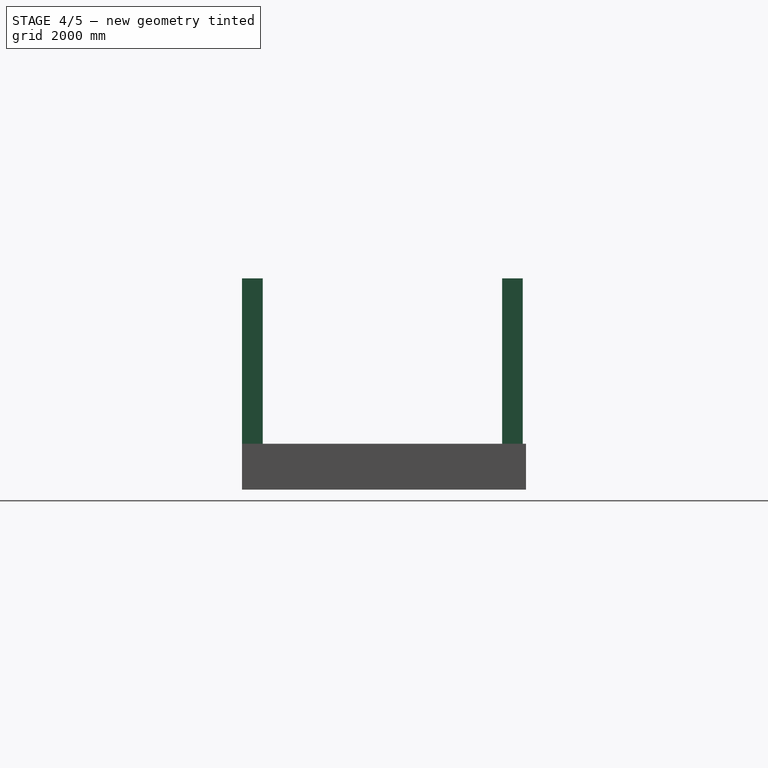
[diagram: stage 4 of 5 — right view after this stage's code; geometry added in this stage tinted green]
FEATURE [Part::Part2DObjectPython] Line004  label="C12_Story1_CenterLine"  # Draft 2D object (typed FeaturePython)
  Area = 0
  ChamferSize = 0
  Closed = false
  End = (6930,5680,3600)
  FilletRadius = 0
  Length = 3600
  MakeFace = true
  Points = (2) [(6930,5680,0),(6930,5680,3600)]
  Start = (6930,5680,0)
  Subdivisions = 0
FEATURE [Part::FeaturePython] Structure004  label="C12_Story1"  # Arch/BIM 24 (typed FeaturePython)
  AttacherType = Attacher::AttachEngine3D
  AttachmentOffset = pos=(0,0,0) rot=(0,0,1;1.5708rad)
  Base = -> C4518Z
  FaceMaker = 0
  Height = 3600
  HorizontalArea = 202500
  IfcData = attributes={"GlobalId": {"name": "GlobalId", "type": "IfcGloballyUniqueId", "is_enum": false, "enum_values": []}, "Description": {"... (+438 chars omitted),+1 more (map truncated)
  IfcType = 24
  Length = 0
  MapMode = 7
  MoveBase = false
  MoveWithHost = false
  Nodes = (2) [(6930,5680,0),(6930,5680,3600)]
  NodesOffset = 0
  Normal = (0,0,0)
  PerimeterLength = 1800
  Placement = pos=(6930,5680,0) rot=(0,0,1;1.5708rad)
  PredefinedType = 0
  Support = -> [Line004]
  VerticalArea = 6.48e+06
  Width = 160
  combos_load = KH_11_Max=1528.7287, 29229.57, -6184.13,KH_21_Max=1599.5708, 33069.58, -7286.85,KH_22_Max=1582.6173, 33057.43, -7514.53,+76 more (map truncated)
FEATURE [Part::Part2DObjectPython] Line005  label="C14_Story1_CenterLine"  # Draft 2D object (typed FeaturePython)
  Area = 0
  ChamferSize = 0
  Closed = false
  End = (3700,20,3600)
  FilletRadius = 0
  Length = 3600
  MakeFace = true
  Points = (2) [(3700,20,0),(3700,20,3600)]
  Start = (3700,20,0)
  Subdivisions = 0
FEATURE [Part::FeaturePython] Structure005  label="C14_Story1"  # Arch/BIM 24 (typed FeaturePython)
  AttacherType = Attacher::AttachEngine3D
  AttachmentOffset = pos=(0,0,0) rot=(0,0,1;1.5708rad)
  Base = -> C4518Z
  FaceMaker = 0
  Height = 3600
  HorizontalArea = 202500
  IfcData = attributes={"GlobalId": {"name": "GlobalId", "type": "IfcGloballyUniqueId", "is_enum": false, "enum_values": []}, "Description": {"... (+438 chars omitted),+1 more (map truncated)
  IfcType = 24
  Length = 0
  MapMode = 7
  MoveBase = false
  MoveWithHost = false
  Nodes = (2) [(3700,20,0),(3700,20,3600)]
  NodesOffset = 0
  Normal = (0,0,0)
  PerimeterLength = 1800
  Placement = pos=(3700,20,0) rot=(0,0,1;1.5708rad)
  PredefinedType = 0
  Support = -> [Line005]
  VerticalArea = 6.48e+06
  Width = 160
  combos_load = KH_11_Max=994.8428, -13687.46, 16984.37,KH_21_Max=1032.4244, -14657.82, 18654.66,KH_22_Max=1020.2668, -14659.23, 18583.07,+76 more (map truncated)
FEATURE [Part::Part2DObjectPython] Line006  label="C7_Story1_CenterLine"  # Draft 2D object (typed FeaturePython)
  Area = 0
  ChamferSize = 0
  Closed = false
  End = (9810,20,3600)
  FilletRadius = 0
  Length = 3600
  MakeFace = true
  Points = (2) [(9810,20,0),(9810,20,3600)]
  Start = (9810,20,0)
  Subdivisions = 0
FEATURE [Part::FeaturePython] Structure006  label="C7_Story1"  # Arch/BIM 24 (typed FeaturePython)
  AttacherType = Attacher::AttachEngine3D
  AttachmentOffset = pos=(0,0,0) rot=(0,0,1;1.5708rad)
  Base = -> C4518Z
  FaceMaker = 0
  Height = 3600
  HorizontalArea = 202500
  IfcData = attributes={"GlobalId": {"name": "GlobalId", "type": "IfcGloballyUniqueId", "is_enum": false, "enum_values": []}, "Description": {"... (+438 chars omitted),+1 more (map truncated)
  IfcType = 24
  Length = 0
  MapMode = 7
  MoveBase = false
  MoveWithHost = false
  Nodes = (2) [(9810,20,0),(9810,20,3600)]
  NodesOffset = 0
  Normal = (0,0,0)
  PerimeterLength = 1800
  Placement = pos=(9810,20,0) rot=(0,0,1;1.5708rad)
  PredefinedType = 0
  Support = -> [Line006]
  VerticalArea = 6.48e+06
  Width = 160
  combos_load = KH_11_Max=712.7242, -8941.36, -14177.64,KH_21_Max=707.7564, -10364.8, -16044.86,KH_22_Max=701.9239, -10371.8, -16103,+76 more (map truncated)
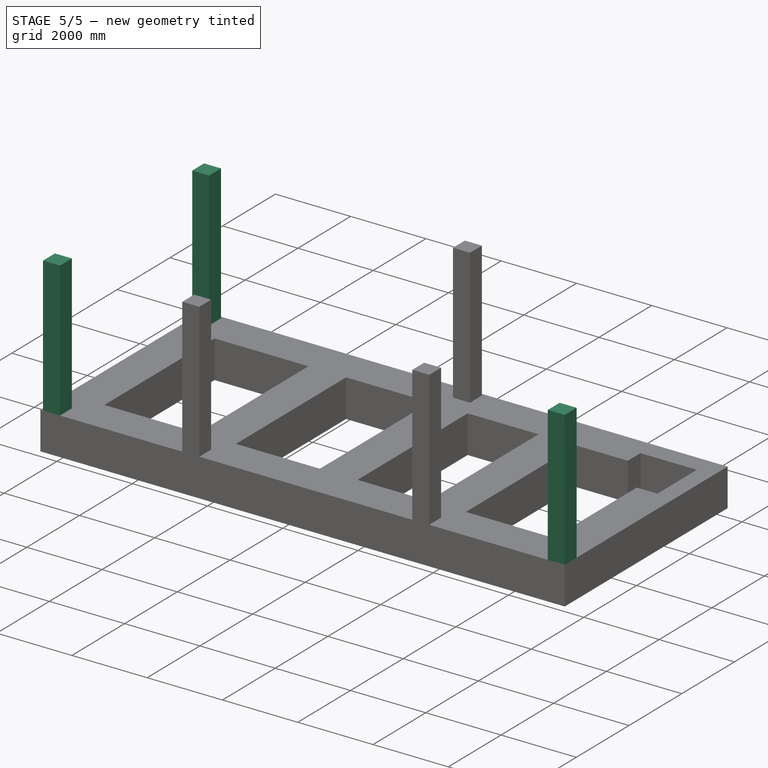
[diagram: stage 5 of 5 — iso view after this stage's code; geometry added in this stage tinted green]
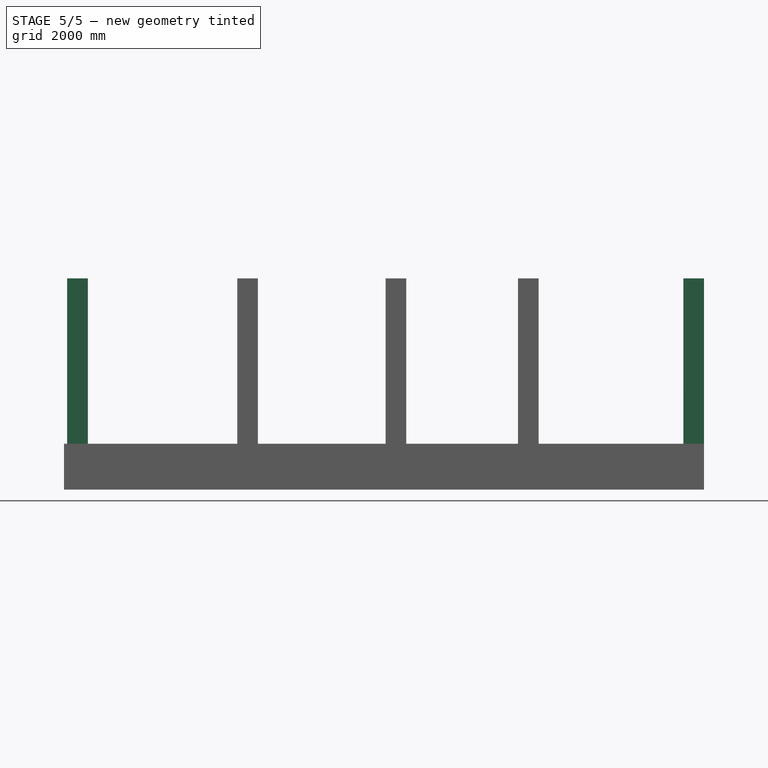
[diagram: stage 5 of 5 — front view after this stage's code; geometry added in this stage tinted green]
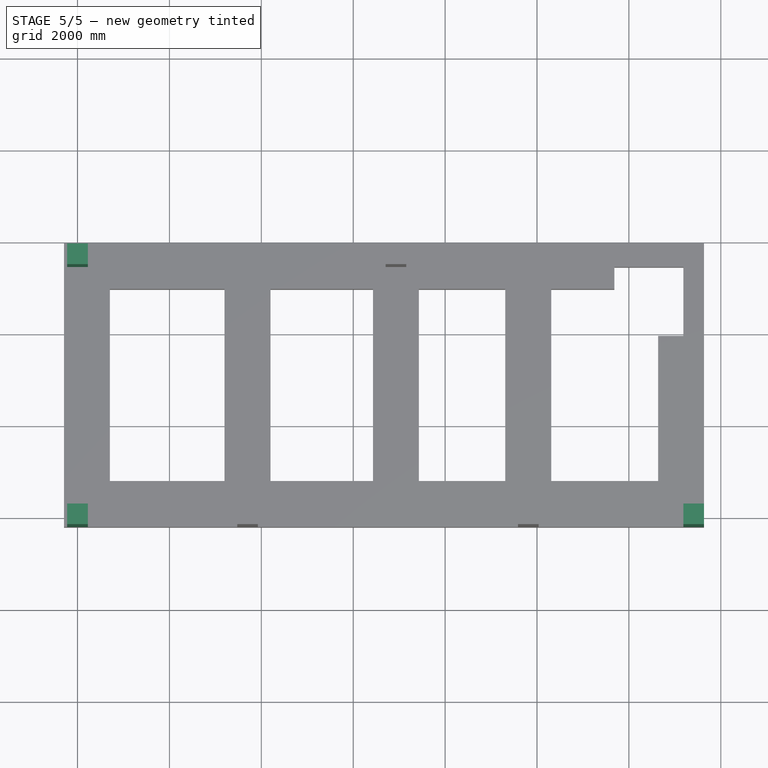
[diagram: stage 5 of 5 — top view after this stage's code; geometry added in this stage tinted green]
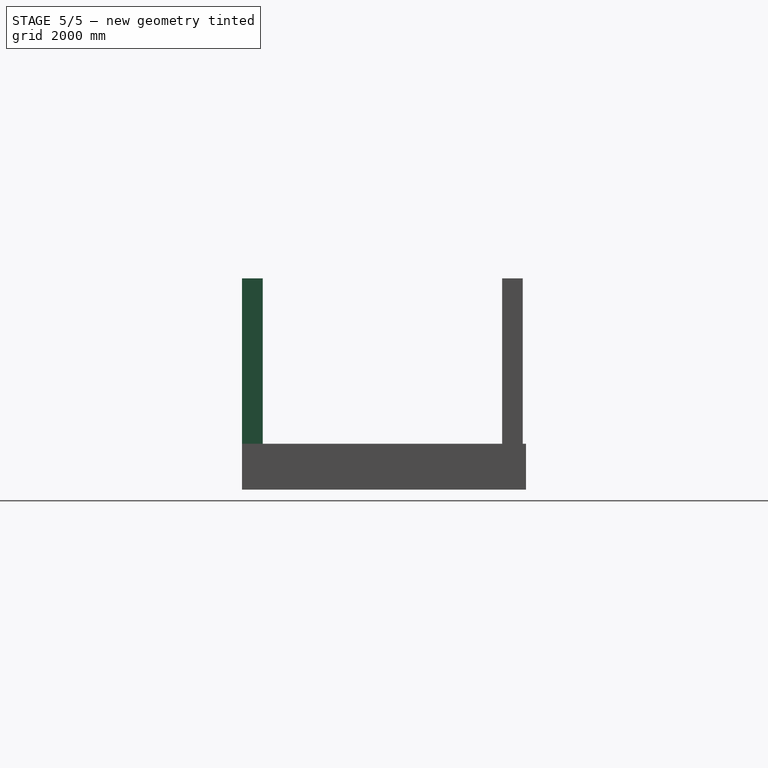
[diagram: stage 5 of 5 — right view after this stage's code; geometry added in this stage tinted green]
FEATURE [App::DocumentObjectGroup] Beams
FEATURE [Part::Part2DObjectPython] Line  label="C10_Story1_CenterLine"  # Draft 2D object (typed FeaturePython)
  Area = 0
  ChamferSize = 0
  Closed = false
  End = (0,5680,3600)
  FilletRadius = 0
  Length = 3600
  MakeFace = true
  Points = (2) [(0,5680,0),(0,5680,3600)]
  Start = (0,5680,0)
  Subdivisions = 0
FEATURE [Part::Part2DObjectPython] C4518Z  # Draft 2D object (typed FeaturePython)
  Height = 450
  Width = 450
FEATURE [Part::FeaturePython] Structure  label="C10_Story1"  # Arch/BIM 24 (typed FeaturePython)
  AttacherType = Attacher::AttachEngine3D
  AttachmentOffset = pos=(0,0,0) rot=(0,0,1;1.5708rad)
  Base = -> C4518Z
  FaceMaker = 0
  Height = 3600
  HorizontalArea = 202500
  IfcData = attributes={"GlobalId": {"name": "GlobalId", "type": "IfcGloballyUniqueId", "is_enum": false, "enum_values": []}, "Description": {"... (+438 chars omitted),+1 more (map truncated)
  IfcType = 24
  Length = 0
  MapMode = 7
  MoveBase = false
  MoveWithHost = false
  Nodes = (2) [(0,5680,0),(0,5680,3600)]
  NodesOffset = 0
  Normal = (0,0,0)
  PerimeterLength = 1800
  Placement = pos=(0,5680,0) rot=(0,0,1;1.5708rad)
  PredefinedType = 0
  Support = -> [Line]
  VerticalArea = 6.48e+06
  Width = 160
  combos_load = KH_11_Max=750.4607, 5285.04, 30450.93,KH_21_Max=733.3281, 2675.26, 32885.82,KH_22_Max=726.5644, 2709.46, 32856.12,+76 more (map truncated)
FEATURE [Part::Part2DObjectPython] Line002  label="C3_Story1_CenterLine"  # Draft 2D object (typed FeaturePython)
  Area = 0
  ChamferSize = 0
  Closed = false
  End = (13410,20,3600)
  FilletRadius = 0
  Length = 3600
  MakeFace = true
  Points = (2) [(13410,20,0),(13410,20,3600)]
  Start = (13410,20,0)
  Subdivisions = 0
FEATURE [Part::FeaturePython] Structure002  label="C3_Story1"  # Arch/BIM 24 (typed FeaturePython)
  AttacherType = Attacher::AttachEngine3D
  AttachmentOffset = pos=(0,0,0) rot=(0,0,1;1.5708rad)
  Base = -> C4518Z
  FaceMaker = 0
  Height = 3600
  HorizontalArea = 202500
  IfcData = attributes={"GlobalId": {"name": "GlobalId", "type": "IfcGloballyUniqueId", "is_enum": false, "enum_values": []}, "Description": {"... (+438 chars omitted),+1 more (map truncated)
  IfcType = 24
  Length = 0
  MapMode = 7
  MoveBase = false
  MoveWithHost = false
  Nodes = (2) [(13410,20,0),(13410,20,3600)]
  NodesOffset = 0
  Normal = (0,0,0)
  PerimeterLength = 1800
  Placement = pos=(13410,20,0) rot=(0,0,1;1.5708rad)
  PredefinedType = 0
  Support = -> [Line002]
  VerticalArea = 6.48e+06
  Width = 160
  combos_load = KH_11_Max=684.3265, -26586.68, -6364.3,KH_21_Max=685.2836, -29097.32, -6577.71,KH_22_Max=676.6878, -29038.68, -6530.13,+76 more (map truncated)
FEATURE [Part::Part2DObjectPython] Line003  label="C13_Story1_CenterLine"  # Draft 2D object (typed FeaturePython)
  Area = 0
  ChamferSize = 0
  Closed = false
  End = (0,20,3600)
  FilletRadius = 0
  Length = 3600
  MakeFace = true
  Points = (2) [(0,20,0),(0,20,3600)]
  Start = (0,20,0)
  Subdivisions = 0
FEATURE [Part::FeaturePython] Structure003  label="C13_Story1"  # Arch/BIM 24 (typed FeaturePython)
  AttacherType = Attacher::AttachEngine3D
  AttachmentOffset = pos=(0,0,0) rot=(0,0,1;1.5708rad)
  Base = -> C4518Z
  FaceMaker = 0
  Height = 3600
  HorizontalArea = 202500
  IfcData = attributes={"GlobalId": {"name": "GlobalId", "type": "IfcGloballyUniqueId", "is_enum": false, "enum_values": []}, "Description": {"... (+438 chars omitted),+1 more (map truncated)
  IfcType = 24
  Length = 0
  MapMode = 7
  MoveBase = false
  MoveWithHost = false
  Nodes = (2) [(0,20,0),(0,20,3600)]
  NodesOffset = 0
  Normal = (0,0,0)
  PerimeterLength = 1800
  Placement = pos=(0,20,0) rot=(0,0,1;1.5708rad)
  PredefinedType = 0
  Support = -> [Line003]
  VerticalArea = 6.48e+06
  Width = 160
  combos_load = KH_11_Max=493.032, -13021.1, 9070.73,KH_21_Max=474.5358, -13163.87, 9732.19,KH_22_Max=470.7375, -13136.45, 9664.33,+76 more (map truncated)
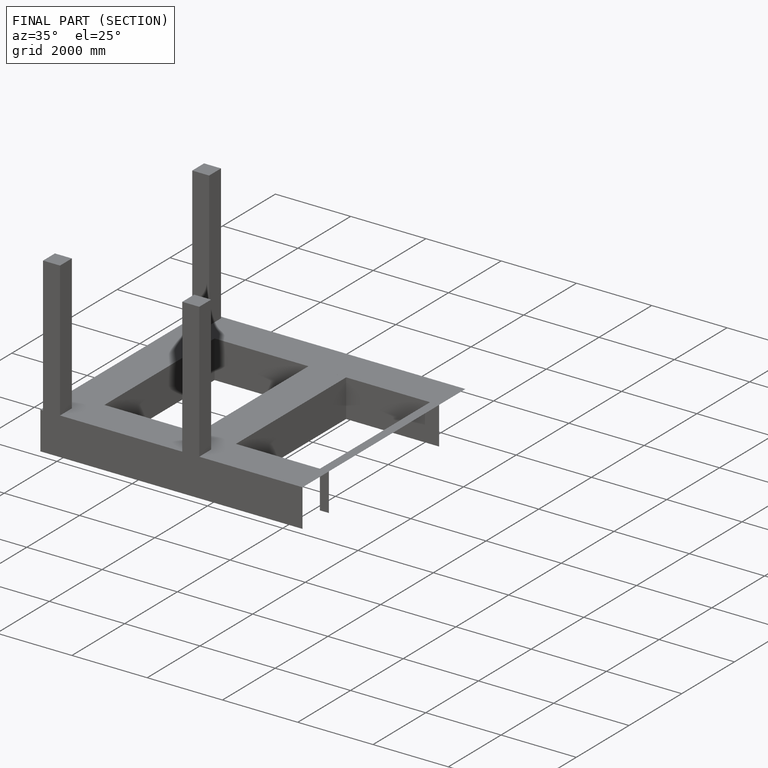
[diagram: finished part — half-section view (interior)]
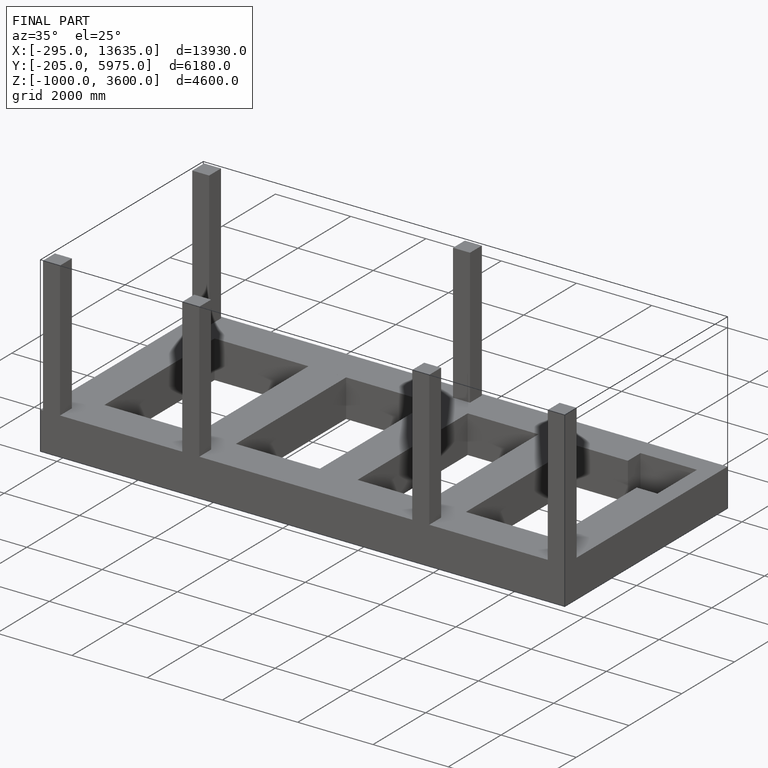
[diagram: finished part — iso view with bounding-box wireframe]
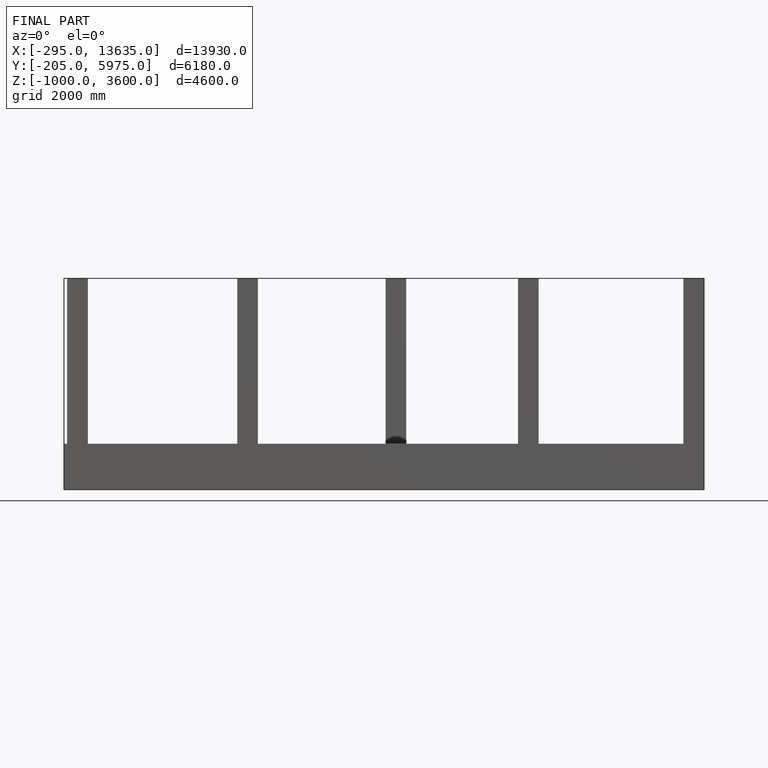
[diagram: finished part — front view with bounding-box wireframe]
